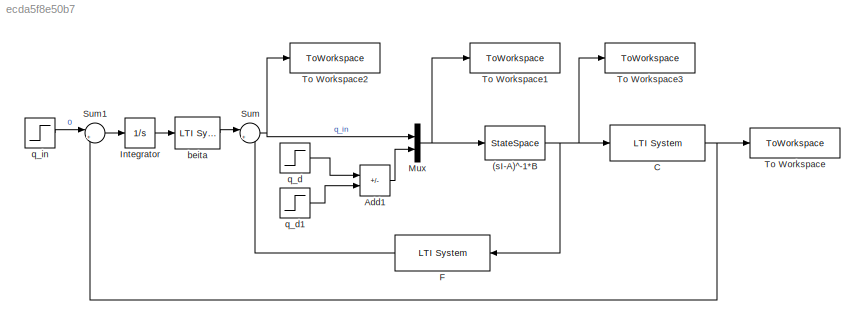
MODEL slx_ecda5f8e50b7
KIND model
CONFIG AbsTol = auto
CONFIG EnableMultiTasking = off
CONFIG FixedStep = auto
CONFIG MaxStep = auto
CONFIG MinStep = auto
CONFIG RelTol = 1e-3
CONFIG SampleTimeConstraint = Unconstrained
CONFIG SolverName = VariableStepAuto
CONFIG StartTime = 0.0
CONFIG StopTime = 15
BLOCK [StateSpace] (sI-A)^-1*B
  A = matA1
  B = matB1
  C = eye(3)
  D = [[0 0];[0 0];[0 0]]
  InitialCondition = 0
BLOCK [Sum] Add1
  IconShape = rectangular
  Inputs = +-
BLOCK [Reference] C  REF=cstblocks/LTI System
  SourceBlock = cstblocks/LTI System
  SourceType = LTI Block
BLOCK [Reference] F  REF=cstblocks/LTI System
  SourceBlock = cstblocks/LTI System
  SourceType = LTI Block
BLOCK [Integrator] Integrator
BLOCK [Mux] Mux
  DisplayOption = bar
  Inputs = 2
BLOCK [Sum] Sum
  Inputs = |+-
BLOCK [Sum] Sum1
  Inputs = |+-
BLOCK [ToWorkspace] To Workspace
  FixptAsFi = on
  MaxDataPoints = inf
  SampleTime = -1
  SaveFormat = Timeseries
  VariableName = y5
BLOCK [ToWorkspace] To Workspace1
  FixptAsFi = on
  MaxDataPoints = inf
  SampleTime = -1
  SaveFormat = Timeseries
  VariableName = u5
BLOCK [ToWorkspace] To Workspace2
  FixptAsFi = on
  MaxDataPoints = inf
  SampleTime = -1
  SaveFormat = Timeseries
  VariableName = q_in5
BLOCK [ToWorkspace] To Workspace3
  FixptAsFi = on
  MaxDataPoints = inf
  SampleTime = -1
  SaveFormat = Timeseries
  VariableName = x5
BLOCK [Reference] beita  REF=cstblocks/LTI System
  SourceBlock = cstblocks/LTI System
  SourceType = LTI Block
BLOCK [Step] q_d
  After = 12
  SampleTime = 0
  Time = 0
BLOCK [Step] q_d1
  After = 12
  SampleTime = 0
  Time = 2.3
BLOCK [Step] q_in
  After = 0
  SampleTime = 0
  Time = 0
NET (sI-A)^-1*B:1 -> C:1, F:1, To Workspace3:1
LINE Add1:1 -> Mux:2
NET C:1 -> Sum1:2, To Workspace:1
LINE F:1 -> Sum:2
LINE Integrator:1 -> beita:1
NET Mux:1 -> (sI-A)^-1*B:1, To Workspace1:1
LINE Sum1:1 -> Integrator:1
NET Sum:1 -> Mux:1, To Workspace2:1
LINE beita:1 -> Sum:1
LINE q_d1:1 -> Add1:2
LINE q_d:1 -> Add1:1
LINE q_in:1 -> Sum1:1
note: NET lines group one-source signal fan-out (src -> all destinations, sorted); 1:1 wires keep LINE
